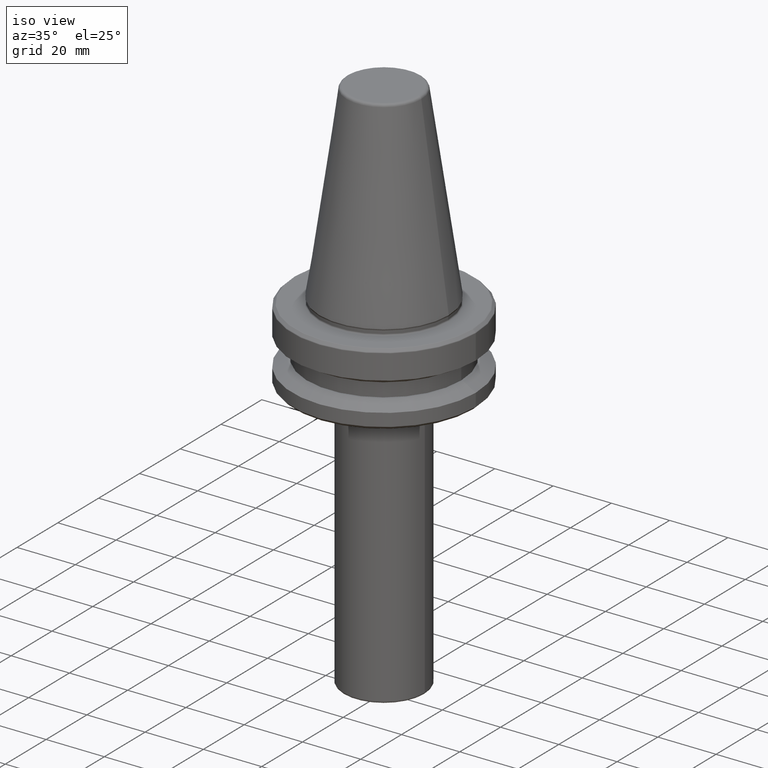
[diagram: clean part render]
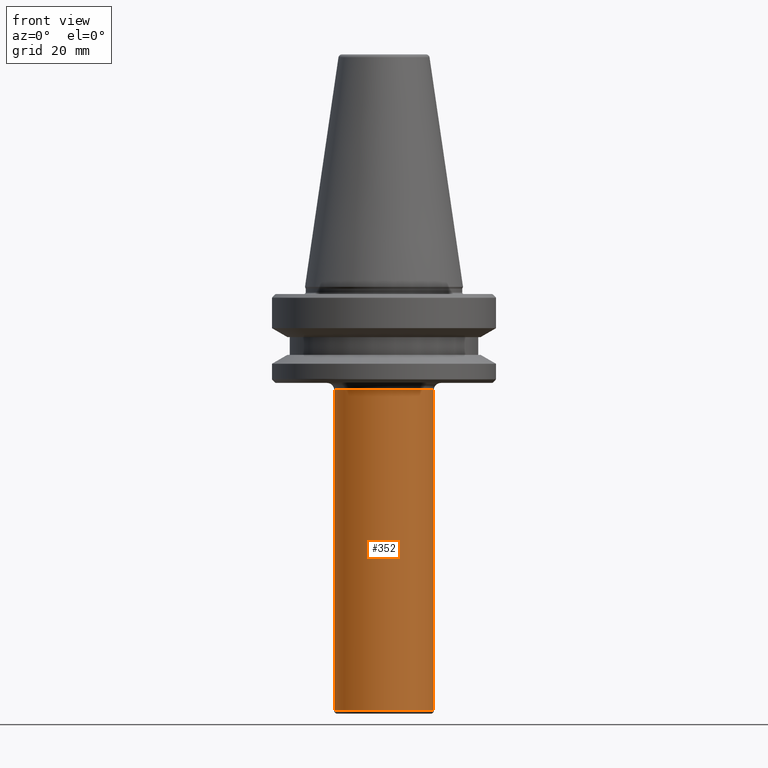
[diagram: tour spotlight — one face highlighted and labeled with its STEP entity id]
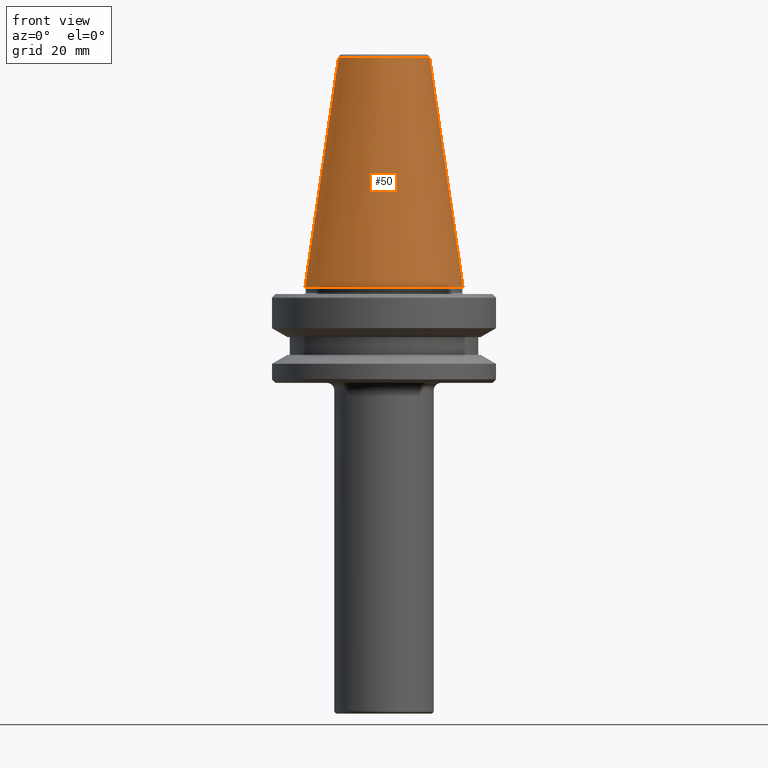
[diagram: tour spotlight — one face highlighted and labeled with its STEP entity id]
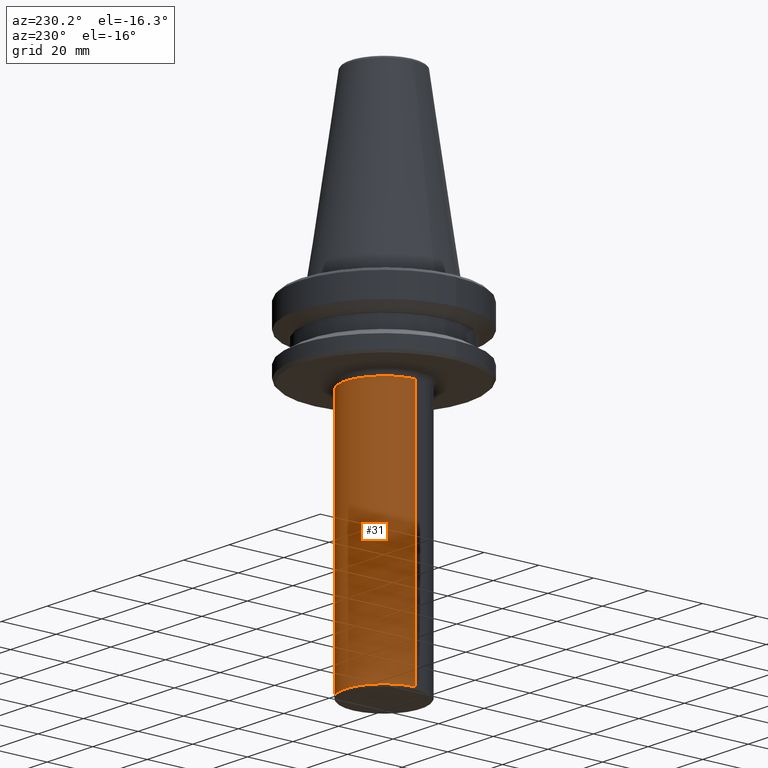
[diagram: tour spotlight — one face highlighted and labeled with its STEP entity id]
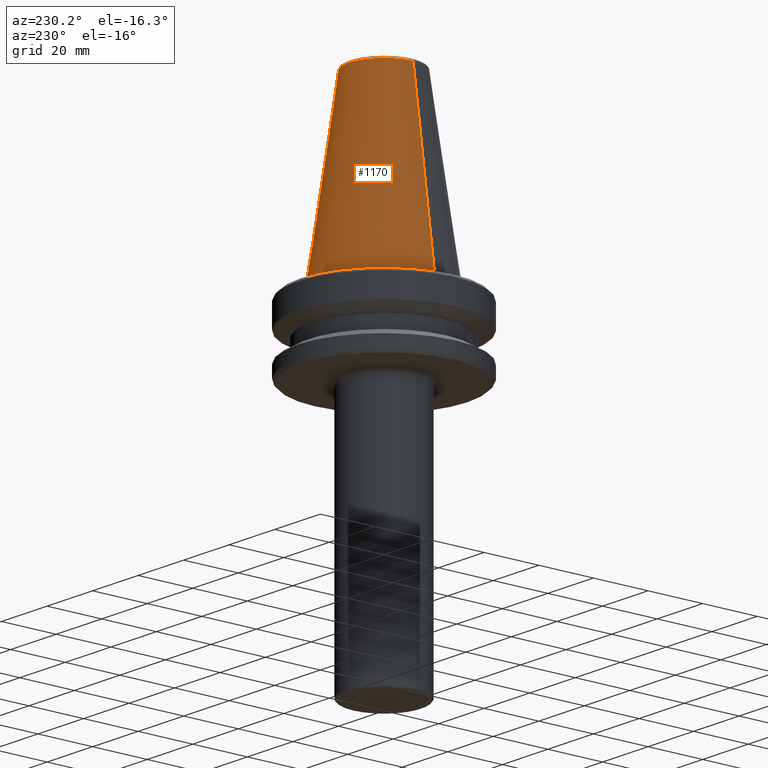
[diagram: tour spotlight — one face highlighted and labeled with its STEP entity id]
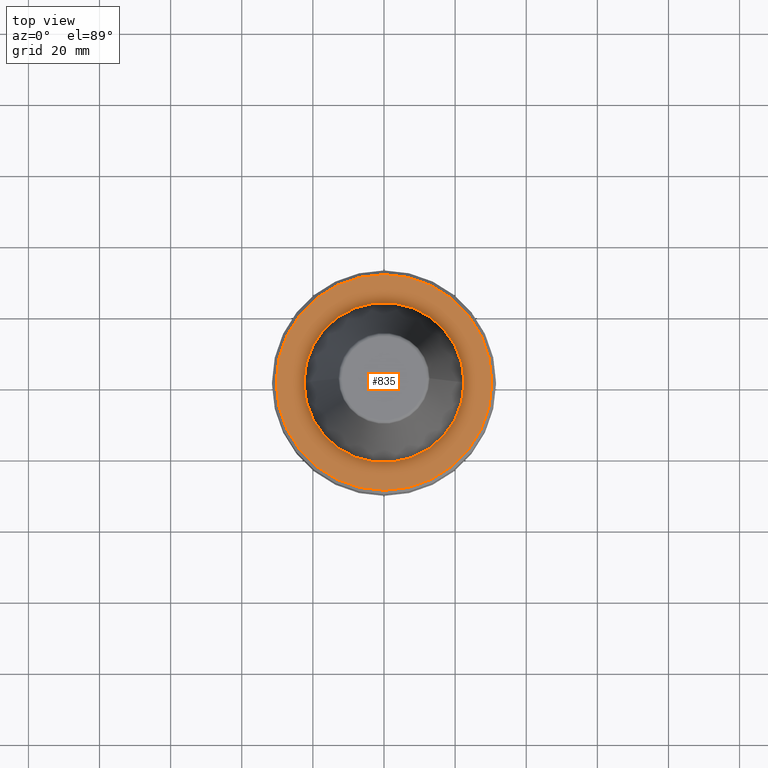
[diagram: tour spotlight — one face highlighted and labeled with its STEP entity id]
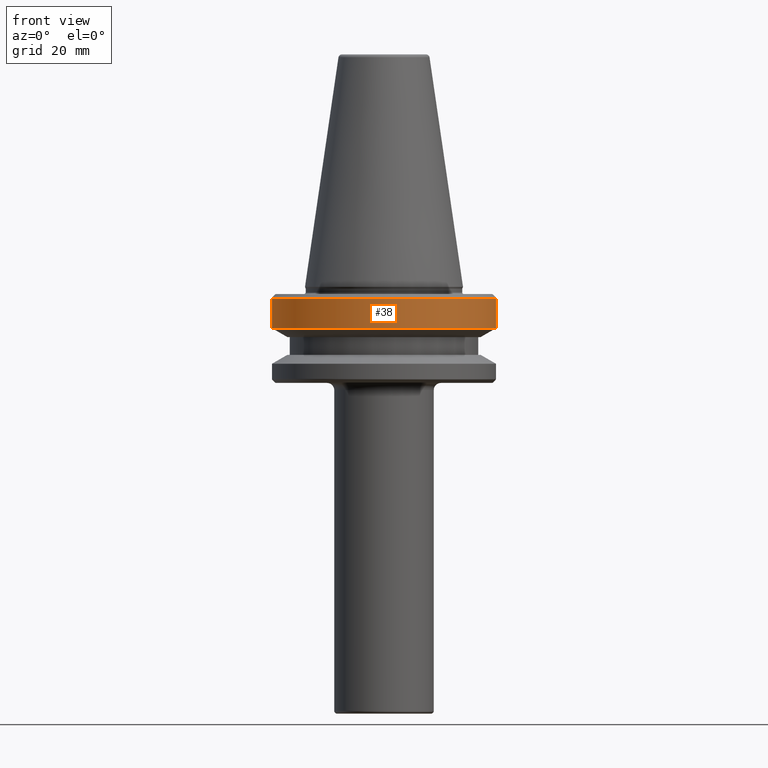
[diagram: tour spotlight — one face highlighted and labeled with its STEP entity id]
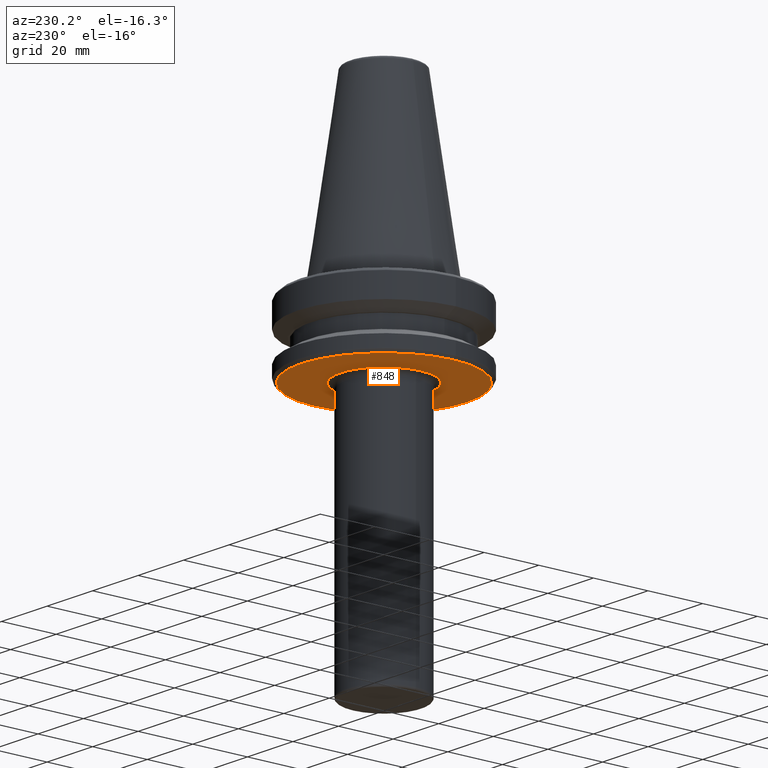
[diagram: tour spotlight — one face highlighted and labeled with its STEP entity id]
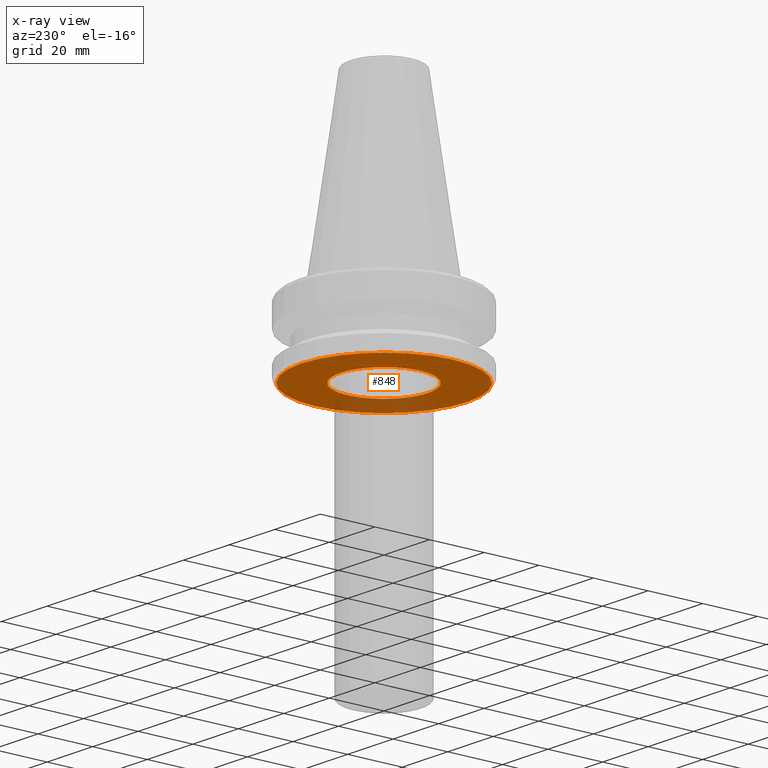
[diagram: x-ray of the same camera — body ghosted, this tour face saturated]
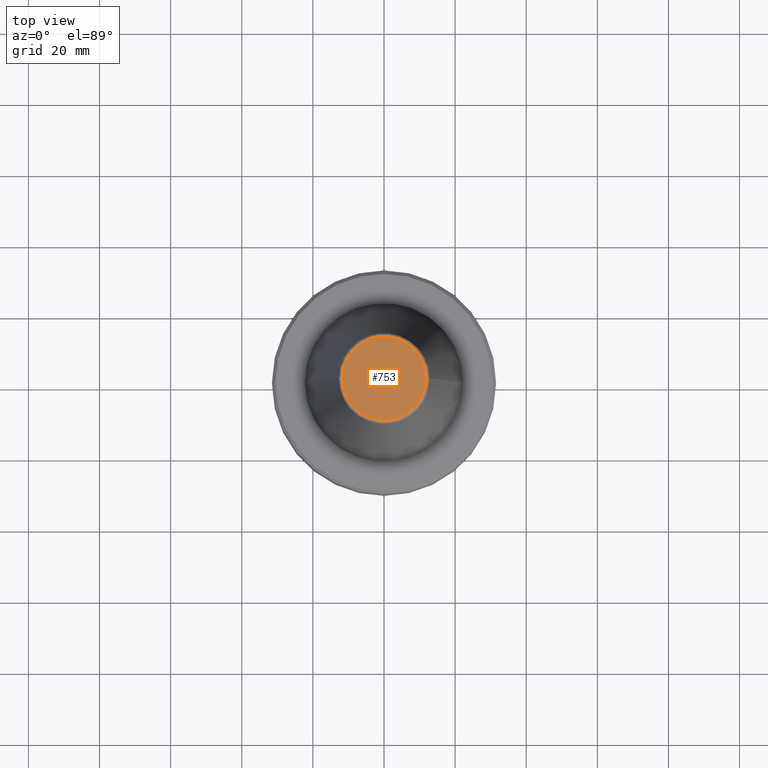
[diagram: tour spotlight — one face highlighted and labeled with its STEP entity id]
A machine part: a face-by-face anatomy tour. The part has 44 B-rep faces; the first image is the clean iso view, then the 8 largest visible faces are spotlighted one at a time (largest first), each with its STEP entity span.

Face 1 — front view, entity #352. In plain terms, the highlighted cylindrical surface (partial cylindrical patch) has radius 14 mm, axis along (-0, -0, 1).
Definition (entity closure, byte-faithful):
#26 = DIRECTION ( 'NONE',  ( -0.0000000000000000000, -0.0000000000000000000, 1.000000000000000000 ) ) ;
#46 = AXIS2_PLACEMENT_3D ( 'NONE', #956, #355, #1068 ) ;
#88 = VERTEX_POINT ( 'NONE', #210 ) ;
#184 = VERTEX_POINT ( 'NONE', #931 ) ;
#197 = EDGE_CURVE ( 'NONE', #438, #184, #895, .T. ) ;
#210 = CARTESIAN_POINT ( 'NONE',  ( 14.00000000000000400, 0.0000000000000000000, -119.2000000000000000 ) ) ;
#249 = EDGE_CURVE ( 'NONE', #844, #88, #867, .T. ) ;
#281 = DIRECTION ( 'NONE',  ( 1.000000000000000000, 0.0000000000000000000, 0.0000000000000000000 ) ) ;
#288 = DIRECTION ( 'NONE',  ( 1.000000000000000000, 0.0000000000000000000, 0.0000000000000000000 ) ) ;
#335 = ORIENTED_EDGE ( 'NONE', *, *, #485, .F. ) ;
#352 = ADVANCED_FACE ( 'NONE', ( #585 ), #583, .T. ) ;
#355 = DIRECTION ( 'NONE',  ( -0.0000000000000000000, -0.0000000000000000000, 1.000000000000000000 ) ) ;
#438 = VERTEX_POINT ( 'NONE', #513 ) ;
#485 = EDGE_CURVE ( 'NONE', #844, #184, #741, .T. ) ;
#513 = CARTESIAN_POINT ( 'NONE',  ( 14.00000000000000200, 0.0000000000000000000, -29.00000000000000400 ) ) ;
#528 = CARTESIAN_POINT ( 'NONE',  ( 14.00000000000000200, 0.0000000000000000000, 0.0000000000000000000 ) ) ;
#560 = ORIENTED_EDGE ( 'NONE', *, *, #249, .T. ) ;
#562 = CARTESIAN_POINT ( 'NONE',  ( 0.0000000000000000000, 0.0000000000000000000, -29.00000000000000400 ) ) ;
#583 = CYLINDRICAL_SURFACE ( 'NONE', #1128, 14.00000000000000200 ) ;
#585 = FACE_OUTER_BOUND ( 'NONE', #842, .T. ) ;
#662 = CARTESIAN_POINT ( 'NONE',  ( 0.0000000000000000000, 0.0000000000000000000, 0.0000000000000000000 ) ) ;
#663 = VECTOR ( 'NONE', #26, 1000.000000000000000 ) ;
#673 = EDGE_CURVE ( 'NONE', #88, #438, #683, .T. ) ;
#683 = LINE ( 'NONE', #528, #663 ) ;
#726 = VECTOR ( 'NONE', #1146, 1000.000000000000000 ) ;
#741 = LINE ( 'NONE', #1031, #726 ) ;
#751 = CARTESIAN_POINT ( 'NONE',  ( -14.00000000000000400, 1.714505518806294800E-015, -119.2000000000000000 ) ) ;
#754 = ORIENTED_EDGE ( 'NONE', *, *, #197, .T. ) ;
#842 = EDGE_LOOP ( 'NONE', ( #335, #560, #1039, #754 ) ) ;
#844 = VERTEX_POINT ( 'NONE', #751 ) ;
#849 = AXIS2_PLACEMENT_3D ( 'NONE', #562, #882, #288 ) ;
#866 = DIRECTION ( 'NONE',  ( -0.0000000000000000000, -0.0000000000000000000, 1.000000000000000000 ) ) ;
#867 = CIRCLE ( 'NONE', #46, 14.00000000000000200 ) ;
#882 = DIRECTION ( 'NONE',  ( -0.0000000000000000000, -0.0000000000000000000, -1.000000000000000000 ) ) ;
#895 = CIRCLE ( 'NONE', #849, 14.00000000000000200 ) ;
#931 = CARTESIAN_POINT ( 'NONE',  ( -14.00000000000000200, 1.714505518806294800E-015, -29.00000000000000400 ) ) ;
#956 = CARTESIAN_POINT ( 'NONE',  ( 0.0000000000000000000, 0.0000000000000000000, -119.2000000000000000 ) ) ;
#1031 = CARTESIAN_POINT ( 'NONE',  ( -14.00000000000000200, 1.714505518806294800E-015, 0.0000000000000000000 ) ) ;
#1039 = ORIENTED_EDGE ( 'NONE', *, *, #673, .T. ) ;
#1068 = DIRECTION ( 'NONE',  ( 1.000000000000000000, 0.0000000000000000000, 0.0000000000000000000 ) ) ;
#1128 = AXIS2_PLACEMENT_3D ( 'NONE', #662, #866, #281 ) ;
#1146 = DIRECTION ( 'NONE',  ( -0.0000000000000000000, -0.0000000000000000000, 1.000000000000000000 ) ) ;

Face 2 — front view, entity #50. In plain terms, the highlighted conical surface has half-angle 8.297 deg.
Definition (entity closure, byte-faithful):
#23 = DIRECTION ( 'NONE',  ( -0.0000000000000000000, -0.0000000000000000000, -1.000000000000000000 ) ) ;
#50 = ADVANCED_FACE ( 'NONE', ( #1011 ), #1150, .T. ) ;
#54 = EDGE_CURVE ( 'NONE', #921, #970, #958, .T. ) ;
#71 = ORIENTED_EDGE ( 'NONE', *, *, #1114, .F. ) ;
#132 = DIRECTION ( 'NONE',  ( -1.000000000000000000, 0.0000000000000000000, 0.0000000000000000000 ) ) ;
#153 = DIRECTION ( 'NONE',  ( 0.1443082272673072200, 1.767266086135366100E-017, -0.9895327864921744700 ) ) ;
#225 = CARTESIAN_POINT ( 'NONE',  ( 22.22500000000000100, 2.721777511104992800E-015, 0.0000000000000000000 ) ) ;
#291 = CARTESIAN_POINT ( 'NONE',  ( 0.0000000000000000000, 0.0000000000000000000, 64.54430822726730800 ) ) ;
#330 = LINE ( 'NONE', #225, #498 ) ;
#391 = DIRECTION ( 'NONE',  ( -1.000000000000000000, 0.0000000000000000000, 0.0000000000000000000 ) ) ;
#420 = VERTEX_POINT ( 'NONE', #874 ) ;
#453 = CARTESIAN_POINT ( 'NONE',  ( -22.22500000000000100, 0.0000000000000000000, 0.0000000000000000000 ) ) ;
#498 = VECTOR ( 'NONE', #153, 1000.000000000000100 ) ;
#509 = CIRCLE ( 'NONE', #1172, 12.81219950706223700 ) ;
#526 = CARTESIAN_POINT ( 'NONE',  ( 0.0000000000000000000, 0.0000000000000000000, 0.0000000000000000000 ) ) ;
#623 = DIRECTION ( 'NONE',  ( -1.000000000000000000, 0.0000000000000000000, 0.0000000000000000000 ) ) ;
#638 = EDGE_CURVE ( 'NONE', #1140, #970, #677, .T. ) ;
#641 = ORIENTED_EDGE ( 'NONE', *, *, #638, .F. ) ;
#655 = CARTESIAN_POINT ( 'NONE',  ( -12.81219950706223500, 0.0000000000000000000, 64.54430822726730800 ) ) ;
#677 = CIRCLE ( 'NONE', #1095, 22.22500000000000100 ) ;
#780 = CARTESIAN_POINT ( 'NONE',  ( 22.22500000000000100, 0.0000000000000000000, 0.0000000000000000000 ) ) ;
#853 = CARTESIAN_POINT ( 'NONE',  ( 0.0000000000000000000, 0.0000000000000000000, 0.0000000000000000000 ) ) ;
#874 = CARTESIAN_POINT ( 'NONE',  ( 12.81219950706223500, 1.569041911636106400E-015, 64.54430822726730800 ) ) ;
#921 = VERTEX_POINT ( 'NONE', #655 ) ;
#946 = EDGE_LOOP ( 'NONE', ( #71, #1122, #985, #641 ) ) ;
#952 = AXIS2_PLACEMENT_3D ( 'NONE', #853, #964, #132 ) ;
#958 = LINE ( 'NONE', #453, #986 ) ;
#964 = DIRECTION ( 'NONE',  ( -0.0000000000000000000, -0.0000000000000000000, -1.000000000000000000 ) ) ;
#970 = VERTEX_POINT ( 'NONE', #1124 ) ;
#985 = ORIENTED_EDGE ( 'NONE', *, *, #54, .T. ) ;
#986 = VECTOR ( 'NONE', #1079, 1000.000000000000100 ) ;
#994 = DIRECTION ( 'NONE',  ( -0.0000000000000000000, -0.0000000000000000000, -1.000000000000000000 ) ) ;
#1011 = FACE_OUTER_BOUND ( 'NONE', #946, .T. ) ;
#1079 = DIRECTION ( 'NONE',  ( -0.1443082272673072200, 0.0000000000000000000, -0.9895327864921744700 ) ) ;
#1095 = AXIS2_PLACEMENT_3D ( 'NONE', #526, #23, #623 ) ;
#1114 = EDGE_CURVE ( 'NONE', #420, #1140, #330, .T. ) ;
#1122 = ORIENTED_EDGE ( 'NONE', *, *, #1137, .T. ) ;
#1124 = CARTESIAN_POINT ( 'NONE',  ( -22.22500000000000100, 2.721777511104992800E-015, 0.0000000000000000000 ) ) ;
#1137 = EDGE_CURVE ( 'NONE', #420, #921, #509, .T. ) ;
#1140 = VERTEX_POINT ( 'NONE', #780 ) ;
#1150 = CONICAL_SURFACE ( 'NONE', #952, 22.22500000000000100, 0.1448138465474192700 ) ;
#1172 = AXIS2_PLACEMENT_3D ( 'NONE', #291, #994, #391 ) ;

Face 3 — auxiliary view, entity #31. In plain terms, the highlighted cylindrical surface (partial cylindrical patch) has radius 14 mm, axis along (-0, -0, 1).
Definition (entity closure, byte-faithful):
#13 = CARTESIAN_POINT ( 'NONE',  ( 0.0000000000000000000, 0.0000000000000000000, -119.2000000000000000 ) ) ;
#26 = DIRECTION ( 'NONE',  ( -0.0000000000000000000, -0.0000000000000000000, 1.000000000000000000 ) ) ;
#31 = ADVANCED_FACE ( 'NONE', ( #1026 ), #1014, .T. ) ;
#88 = VERTEX_POINT ( 'NONE', #210 ) ;
#101 = DIRECTION ( 'NONE',  ( 1.000000000000000000, 0.0000000000000000000, 0.0000000000000000000 ) ) ;
#119 = EDGE_LOOP ( 'NONE', ( #1130, #828, #738, #999 ) ) ;
#140 = AXIS2_PLACEMENT_3D ( 'NONE', #13, #611, #101 ) ;
#184 = VERTEX_POINT ( 'NONE', #931 ) ;
#210 = CARTESIAN_POINT ( 'NONE',  ( 14.00000000000000400, 0.0000000000000000000, -119.2000000000000000 ) ) ;
#233 = DIRECTION ( 'NONE',  ( 1.000000000000000000, 0.0000000000000000000, 0.0000000000000000000 ) ) ;
#399 = DIRECTION ( 'NONE',  ( -0.0000000000000000000, -0.0000000000000000000, 1.000000000000000000 ) ) ;
#426 = EDGE_CURVE ( 'NONE', #88, #844, #770, .T. ) ;
#438 = VERTEX_POINT ( 'NONE', #513 ) ;
#461 = CIRCLE ( 'NONE', #524, 14.00000000000000200 ) ;
#485 = EDGE_CURVE ( 'NONE', #844, #184, #741, .T. ) ;
#502 = CARTESIAN_POINT ( 'NONE',  ( 0.0000000000000000000, 0.0000000000000000000, -29.00000000000000400 ) ) ;
#513 = CARTESIAN_POINT ( 'NONE',  ( 14.00000000000000200, 0.0000000000000000000, -29.00000000000000400 ) ) ;
#524 = AXIS2_PLACEMENT_3D ( 'NONE', #502, #1210, #600 ) ;
#528 = CARTESIAN_POINT ( 'NONE',  ( 14.00000000000000200, 0.0000000000000000000, 0.0000000000000000000 ) ) ;
#600 = DIRECTION ( 'NONE',  ( 1.000000000000000000, 0.0000000000000000000, 0.0000000000000000000 ) ) ;
#611 = DIRECTION ( 'NONE',  ( -0.0000000000000000000, -0.0000000000000000000, 1.000000000000000000 ) ) ;
#663 = VECTOR ( 'NONE', #26, 1000.000000000000000 ) ;
#673 = EDGE_CURVE ( 'NONE', #88, #438, #683, .T. ) ;
#683 = LINE ( 'NONE', #528, #663 ) ;
#726 = VECTOR ( 'NONE', #1146, 1000.000000000000000 ) ;
#738 = ORIENTED_EDGE ( 'NONE', *, *, #1194, .T. ) ;
#741 = LINE ( 'NONE', #1031, #726 ) ;
#751 = CARTESIAN_POINT ( 'NONE',  ( -14.00000000000000400, 1.714505518806294800E-015, -119.2000000000000000 ) ) ;
#770 = CIRCLE ( 'NONE', #140, 14.00000000000000200 ) ;
#828 = ORIENTED_EDGE ( 'NONE', *, *, #485, .T. ) ;
#844 = VERTEX_POINT ( 'NONE', #751 ) ;
#931 = CARTESIAN_POINT ( 'NONE',  ( -14.00000000000000200, 1.714505518806294800E-015, -29.00000000000000400 ) ) ;
#999 = ORIENTED_EDGE ( 'NONE', *, *, #673, .F. ) ;
#1014 = CYLINDRICAL_SURFACE ( 'NONE', #1105, 14.00000000000000200 ) ;
#1026 = FACE_OUTER_BOUND ( 'NONE', #119, .T. ) ;
#1031 = CARTESIAN_POINT ( 'NONE',  ( -14.00000000000000200, 1.714505518806294800E-015, 0.0000000000000000000 ) ) ;
#1105 = AXIS2_PLACEMENT_3D ( 'NONE', #1199, #399, #233 ) ;
#1130 = ORIENTED_EDGE ( 'NONE', *, *, #426, .T. ) ;
#1146 = DIRECTION ( 'NONE',  ( -0.0000000000000000000, -0.0000000000000000000, 1.000000000000000000 ) ) ;
#1194 = EDGE_CURVE ( 'NONE', #184, #438, #461, .T. ) ;
#1199 = CARTESIAN_POINT ( 'NONE',  ( 0.0000000000000000000, 0.0000000000000000000, 0.0000000000000000000 ) ) ;
#1210 = DIRECTION ( 'NONE',  ( -0.0000000000000000000, -0.0000000000000000000, -1.000000000000000000 ) ) ;

Face 4 — auxiliary view, entity #1170. In plain terms, the highlighted conical surface has half-angle 8.297 deg.
Definition (entity closure, byte-faithful):
#54 = EDGE_CURVE ( 'NONE', #921, #970, #958, .T. ) ;
#82 = CARTESIAN_POINT ( 'NONE',  ( 0.0000000000000000000, 0.0000000000000000000, 0.0000000000000000000 ) ) ;
#153 = DIRECTION ( 'NONE',  ( 0.1443082272673072200, 1.767266086135366100E-017, -0.9895327864921744700 ) ) ;
#187 = AXIS2_PLACEMENT_3D ( 'NONE', #299, #1003, #400 ) ;
#199 = ORIENTED_EDGE ( 'NONE', *, *, #748, .F. ) ;
#225 = CARTESIAN_POINT ( 'NONE',  ( 22.22500000000000100, 2.721777511104992800E-015, 0.0000000000000000000 ) ) ;
#299 = CARTESIAN_POINT ( 'NONE',  ( 0.0000000000000000000, 0.0000000000000000000, 64.54430822726730800 ) ) ;
#300 = DIRECTION ( 'NONE',  ( -1.000000000000000000, 0.0000000000000000000, 0.0000000000000000000 ) ) ;
#323 = CARTESIAN_POINT ( 'NONE',  ( 0.0000000000000000000, 0.0000000000000000000, 0.0000000000000000000 ) ) ;
#330 = LINE ( 'NONE', #225, #498 ) ;
#400 = DIRECTION ( 'NONE',  ( -1.000000000000000000, 0.0000000000000000000, 0.0000000000000000000 ) ) ;
#401 = AXIS2_PLACEMENT_3D ( 'NONE', #82, #592, #300 ) ;
#420 = VERTEX_POINT ( 'NONE', #874 ) ;
#423 = DIRECTION ( 'NONE',  ( -1.000000000000000000, 0.0000000000000000000, 0.0000000000000000000 ) ) ;
#433 = EDGE_CURVE ( 'NONE', #921, #420, #764, .T. ) ;
#441 = AXIS2_PLACEMENT_3D ( 'NONE', #323, #1028, #423 ) ;
#453 = CARTESIAN_POINT ( 'NONE',  ( -22.22500000000000100, 0.0000000000000000000, 0.0000000000000000000 ) ) ;
#462 = CONICAL_SURFACE ( 'NONE', #401, 22.22500000000000100, 0.1448138465474192700 ) ;
#480 = FACE_OUTER_BOUND ( 'NONE', #968, .T. ) ;
#486 = ORIENTED_EDGE ( 'NONE', *, *, #1114, .T. ) ;
#498 = VECTOR ( 'NONE', #153, 1000.000000000000100 ) ;
#592 = DIRECTION ( 'NONE',  ( -0.0000000000000000000, -0.0000000000000000000, -1.000000000000000000 ) ) ;
#626 = CIRCLE ( 'NONE', #441, 22.22500000000000100 ) ;
#655 = CARTESIAN_POINT ( 'NONE',  ( -12.81219950706223500, 0.0000000000000000000, 64.54430822726730800 ) ) ;
#748 = EDGE_CURVE ( 'NONE', #970, #1140, #626, .T. ) ;
#764 = CIRCLE ( 'NONE', #187, 12.81219950706223700 ) ;
#780 = CARTESIAN_POINT ( 'NONE',  ( 22.22500000000000100, 0.0000000000000000000, 0.0000000000000000000 ) ) ;
#874 = CARTESIAN_POINT ( 'NONE',  ( 12.81219950706223500, 1.569041911636106400E-015, 64.54430822726730800 ) ) ;
#921 = VERTEX_POINT ( 'NONE', #655 ) ;
#958 = LINE ( 'NONE', #453, #986 ) ;
#968 = EDGE_LOOP ( 'NONE', ( #1132, #486, #199, #1085 ) ) ;
#970 = VERTEX_POINT ( 'NONE', #1124 ) ;
#986 = VECTOR ( 'NONE', #1079, 1000.000000000000100 ) ;
#1003 = DIRECTION ( 'NONE',  ( -0.0000000000000000000, -0.0000000000000000000, -1.000000000000000000 ) ) ;
#1028 = DIRECTION ( 'NONE',  ( -0.0000000000000000000, -0.0000000000000000000, -1.000000000000000000 ) ) ;
#1079 = DIRECTION ( 'NONE',  ( -0.1443082272673072200, 0.0000000000000000000, -0.9895327864921744700 ) ) ;
#1085 = ORIENTED_EDGE ( 'NONE', *, *, #54, .F. ) ;
#1114 = EDGE_CURVE ( 'NONE', #420, #1140, #330, .T. ) ;
#1124 = CARTESIAN_POINT ( 'NONE',  ( -22.22500000000000100, 2.721777511104992800E-015, 0.0000000000000000000 ) ) ;
#1132 = ORIENTED_EDGE ( 'NONE', *, *, #433, .T. ) ;
#1140 = VERTEX_POINT ( 'NONE', #780 ) ;
#1170 = ADVANCED_FACE ( 'NONE', ( #480 ), #462, .T. ) ;

Face 5 — top view, entity #835. In plain terms, the highlighted planar face has unit normal (-0, 0, -1).
Definition (entity closure, byte-faithful):
#18 = VERTEX_POINT ( 'NONE', #788 ) ;
#33 = VERTEX_POINT ( 'NONE', #796 ) ;
#42 = DIRECTION ( 'NONE',  ( -1.000000000000000000, 0.0000000000000000000, 0.0000000000000000000 ) ) ;
#56 = DIRECTION ( 'NONE',  ( -1.000000000000000000, 0.0000000000000000000, 0.0000000000000000000 ) ) ;
#114 = DIRECTION ( 'NONE',  ( -0.0000000000000000000, -0.0000000000000000000, -1.000000000000000000 ) ) ;
#120 = AXIS2_PLACEMENT_3D ( 'NONE', #627, #114, #734 ) ;
#128 = VERTEX_POINT ( 'NONE', #212 ) ;
#200 = AXIS2_PLACEMENT_3D ( 'NONE', #891, #294, #997 ) ;
#212 = CARTESIAN_POINT ( 'NONE',  ( 22.50000000000000000, 2.755455298081545200E-015, -2.000000000000000000 ) ) ;
#271 = ORIENTED_EDGE ( 'NONE', *, *, #1205, .T. ) ;
#287 = EDGE_CURVE ( 'NONE', #33, #128, #812, .T. ) ;
#294 = DIRECTION ( 'NONE',  ( -0.0000000000000000000, -0.0000000000000000000, -1.000000000000000000 ) ) ;
#331 = AXIS2_PLACEMENT_3D ( 'NONE', #978, #380, #1098 ) ;
#342 = CIRCLE ( 'NONE', #200, 30.33431457505075800 ) ;
#356 = CARTESIAN_POINT ( 'NONE',  ( 0.0000000000000000000, 0.0000000000000000000, -2.000000000000000000 ) ) ;
#380 = DIRECTION ( 'NONE',  ( -0.0000000000000000000, -0.0000000000000000000, -1.000000000000000000 ) ) ;
#464 = CIRCLE ( 'NONE', #331, 22.50000000000000400 ) ;
#546 = DIRECTION ( 'NONE',  ( -0.0000000000000000000, 0.0000000000000000000, -1.000000000000000000 ) ) ;
#566 = DIRECTION ( 'NONE',  ( -0.0000000000000000000, -0.0000000000000000000, -1.000000000000000000 ) ) ;
#604 = FACE_BOUND ( 'NONE', #948, .T. ) ;
#613 = FACE_OUTER_BOUND ( 'NONE', #836, .T. ) ;
#621 = AXIS2_PLACEMENT_3D ( 'NONE', #801, #566, #56 ) ;
#627 = CARTESIAN_POINT ( 'NONE',  ( 0.0000000000000000000, 0.0000000000000000000, -2.000000000000000000 ) ) ;
#660 = CIRCLE ( 'NONE', #120, 30.33431457505075800 ) ;
#671 = EDGE_CURVE ( 'NONE', #18, #1041, #660, .T. ) ;
#734 = DIRECTION ( 'NONE',  ( -1.000000000000000000, 0.0000000000000000000, 0.0000000000000000000 ) ) ;
#788 = CARTESIAN_POINT ( 'NONE',  ( 30.33431457505075800, 3.732201245991191100E-015, -2.000000000000000000 ) ) ;
#796 = CARTESIAN_POINT ( 'NONE',  ( -22.50000000000000000, 0.0000000000000000000, -2.000000000000000000 ) ) ;
#801 = CARTESIAN_POINT ( 'NONE',  ( 0.0000000000000000000, 0.0000000000000000000, -2.000000000000000000 ) ) ;
#802 = CARTESIAN_POINT ( 'NONE',  ( -30.33431457505075800, 0.0000000000000000000, -2.000000000000000000 ) ) ;
#812 = CIRCLE ( 'NONE', #621, 22.50000000000000400 ) ;
#835 = ADVANCED_FACE ( 'NONE', ( #613, #604 ), #843, .F. ) ;
#836 = EDGE_LOOP ( 'NONE', ( #1156, #839 ) ) ;
#839 = ORIENTED_EDGE ( 'NONE', *, *, #671, .F. ) ;
#843 = PLANE ( 'NONE',  #988 ) ;
#891 = CARTESIAN_POINT ( 'NONE',  ( 0.0000000000000000000, 0.0000000000000000000, -2.000000000000000000 ) ) ;
#910 = EDGE_CURVE ( 'NONE', #1041, #18, #342, .T. ) ;
#948 = EDGE_LOOP ( 'NONE', ( #1037, #271 ) ) ;
#978 = CARTESIAN_POINT ( 'NONE',  ( 0.0000000000000000000, 0.0000000000000000000, -2.000000000000000000 ) ) ;
#988 = AXIS2_PLACEMENT_3D ( 'NONE', #356, #546, #42 ) ;
#997 = DIRECTION ( 'NONE',  ( -1.000000000000000000, 0.0000000000000000000, 0.0000000000000000000 ) ) ;
#1037 = ORIENTED_EDGE ( 'NONE', *, *, #287, .T. ) ;
#1041 = VERTEX_POINT ( 'NONE', #802 ) ;
#1098 = DIRECTION ( 'NONE',  ( -1.000000000000000000, 0.0000000000000000000, 0.0000000000000000000 ) ) ;
#1156 = ORIENTED_EDGE ( 'NONE', *, *, #910, .F. ) ;
#1205 = EDGE_CURVE ( 'NONE', #128, #33, #464, .T. ) ;

Face 6 — front view, entity #38. In plain terms, the highlighted cylindrical surface (partial cylindrical patch) has radius 31.5 mm, axis along (-0, -0, -1).
Definition (entity closure, byte-faithful):
#25 = CARTESIAN_POINT ( 'NONE',  ( -31.50000000000000000, 3.857637417314162700E-015, -11.60014666881784400 ) ) ;
#27 = CARTESIAN_POINT ( 'NONE',  ( 0.0000000000000000000, 0.0000000000000000000, -11.60014666881784400 ) ) ;
#38 = ADVANCED_FACE ( 'NONE', ( #1027 ), #1007, .T. ) ;
#51 = ORIENTED_EDGE ( 'NONE', *, *, #93, .T. ) ;
#68 = AXIS2_PLACEMENT_3D ( 'NONE', #27, #630, #116 ) ;
#79 = DIRECTION ( 'NONE',  ( -0.0000000000000000000, -0.0000000000000000000, -1.000000000000000000 ) ) ;
#89 = EDGE_CURVE ( 'NONE', #1057, #594, #941, .T. ) ;
#93 = EDGE_CURVE ( 'NONE', #1115, #1149, #957, .T. ) ;
#116 = DIRECTION ( 'NONE',  ( -1.000000000000000000, 0.0000000000000000000, 0.0000000000000000000 ) ) ;
#136 = CARTESIAN_POINT ( 'NONE',  ( 0.0000000000000000000, 0.0000000000000000000, -3.165685424949240100 ) ) ;
#169 = DIRECTION ( 'NONE',  ( -1.000000000000000000, 0.0000000000000000000, 0.0000000000000000000 ) ) ;
#183 = AXIS2_PLACEMENT_3D ( 'NONE', #136, #757, #208 ) ;
#208 = DIRECTION ( 'NONE',  ( -1.000000000000000000, 0.0000000000000000000, 0.0000000000000000000 ) ) ;
#237 = CARTESIAN_POINT ( 'NONE',  ( 0.0000000000000000000, 0.0000000000000000000, 0.0000000000000000000 ) ) ;
#275 = EDGE_LOOP ( 'NONE', ( #1051, #51, #1136, #370 ) ) ;
#370 = ORIENTED_EDGE ( 'NONE', *, *, #89, .F. ) ;
#424 = CARTESIAN_POINT ( 'NONE',  ( 31.50000000000000000, 3.857637417314162700E-015, 0.0000000000000000000 ) ) ;
#472 = EDGE_CURVE ( 'NONE', #1149, #594, #744, .T. ) ;
#538 = EDGE_CURVE ( 'NONE', #1115, #1057, #725, .T. ) ;
#594 = VERTEX_POINT ( 'NONE', #25 ) ;
#608 = DIRECTION ( 'NONE',  ( -0.0000000000000000000, -0.0000000000000000000, -1.000000000000000000 ) ) ;
#630 = DIRECTION ( 'NONE',  ( -0.0000000000000000000, -0.0000000000000000000, -1.000000000000000000 ) ) ;
#704 = CARTESIAN_POINT ( 'NONE',  ( 31.50000000000000000, 0.0000000000000000000, -11.60014666881784400 ) ) ;
#717 = VECTOR ( 'NONE', #821, 1000.000000000000000 ) ;
#725 = LINE ( 'NONE', #424, #717 ) ;
#730 = VECTOR ( 'NONE', #608, 1000.000000000000000 ) ;
#744 = LINE ( 'NONE', #817, #730 ) ;
#757 = DIRECTION ( 'NONE',  ( -0.0000000000000000000, -0.0000000000000000000, -1.000000000000000000 ) ) ;
#817 = CARTESIAN_POINT ( 'NONE',  ( -31.50000000000000000, 0.0000000000000000000, 0.0000000000000000000 ) ) ;
#821 = DIRECTION ( 'NONE',  ( -0.0000000000000000000, -0.0000000000000000000, -1.000000000000000000 ) ) ;
#885 = CARTESIAN_POINT ( 'NONE',  ( -31.50000000000000000, 0.0000000000000000000, -3.165685424949240100 ) ) ;
#941 = CIRCLE ( 'NONE', #68, 31.50000000000000000 ) ;
#957 = CIRCLE ( 'NONE', #183, 31.50000000000000000 ) ;
#1007 = CYLINDRICAL_SURFACE ( 'NONE', #1165, 31.50000000000000000 ) ;
#1027 = FACE_OUTER_BOUND ( 'NONE', #275, .T. ) ;
#1051 = ORIENTED_EDGE ( 'NONE', *, *, #538, .F. ) ;
#1057 = VERTEX_POINT ( 'NONE', #704 ) ;
#1106 = CARTESIAN_POINT ( 'NONE',  ( 31.50000000000000000, 3.857637417314162700E-015, -3.165685424949240100 ) ) ;
#1115 = VERTEX_POINT ( 'NONE', #1106 ) ;
#1136 = ORIENTED_EDGE ( 'NONE', *, *, #472, .T. ) ;
#1149 = VERTEX_POINT ( 'NONE', #885 ) ;
#1165 = AXIS2_PLACEMENT_3D ( 'NONE', #237, #79, #169 ) ;

Face 7 — auxiliary view, entity #848. An x-ray twin of the same camera follows (body ghosted, this face saturated) — the face is partly hidden behind the body. In plain terms, the highlighted planar face has unit normal (0, 0, 1).
Definition (entity closure, byte-faithful):
#40 = AXIS2_PLACEMENT_3D ( 'NONE', #651, #854, #273 ) ;
#63 = CARTESIAN_POINT ( 'NONE',  ( 0.0000000000000000000, 0.0000000000000000000, -27.00000000000000400 ) ) ;
#94 = EDGE_LOOP ( 'NONE', ( #1045, #226 ) ) ;
#99 = CARTESIAN_POINT ( 'NONE',  ( 0.0000000000000000000, 0.0000000000000000000, -27.00000000000000400 ) ) ;
#106 = CARTESIAN_POINT ( 'NONE',  ( 30.33431457505075800, 3.732201245991191100E-015, -27.00000000000000400 ) ) ;
#113 = DIRECTION ( 'NONE',  ( -0.0000000000000000000, -0.0000000000000000000, -1.000000000000000000 ) ) ;
#141 = VERTEX_POINT ( 'NONE', #106 ) ;
#151 = DIRECTION ( 'NONE',  ( -1.000000000000000000, 0.0000000000000000000, 0.0000000000000000000 ) ) ;
#182 = DIRECTION ( 'NONE',  ( 1.000000000000000000, 0.0000000000000000000, 0.0000000000000000000 ) ) ;
#226 = ORIENTED_EDGE ( 'NONE', *, *, #1209, .T. ) ;
#273 = DIRECTION ( 'NONE',  ( 1.000000000000000000, 0.0000000000000000000, -0.0000000000000000000 ) ) ;
#398 = AXIS2_PLACEMENT_3D ( 'NONE', #63, #668, #151 ) ;
#408 = EDGE_CURVE ( 'NONE', #1008, #1091, #771, .T. ) ;
#439 = CARTESIAN_POINT ( 'NONE',  ( 0.0000000000000000000, 0.0000000000000000000, -27.00000000000000400 ) ) ;
#445 = CIRCLE ( 'NONE', #398, 30.33431457505075800 ) ;
#501 = CARTESIAN_POINT ( 'NONE',  ( -30.33431457505075800, 0.0000000000000000000, -27.00000000000000400 ) ) ;
#537 = DIRECTION ( 'NONE',  ( 1.000000000000000000, 0.0000000000000000000, 0.0000000000000000000 ) ) ;
#540 = EDGE_CURVE ( 'NONE', #1091, #1008, #727, .T. ) ;
#544 = DIRECTION ( 'NONE',  ( -1.000000000000000000, 0.0000000000000000000, 0.0000000000000000000 ) ) ;
#567 = FACE_OUTER_BOUND ( 'NONE', #94, .T. ) ;
#575 = CARTESIAN_POINT ( 'NONE',  ( 16.00000000000000000, 0.0000000000000000000, -27.00000000000000400 ) ) ;
#615 = FACE_BOUND ( 'NONE', #706, .T. ) ;
#646 = CIRCLE ( 'NONE', #710, 30.33431457505075800 ) ;
#651 = CARTESIAN_POINT ( 'NONE',  ( 0.0000000000000000000, 3.088089149698246700E-015, -27.00000000000000400 ) ) ;
#664 = AXIS2_PLACEMENT_3D ( 'NONE', #439, #1162, #537 ) ;
#668 = DIRECTION ( 'NONE',  ( -0.0000000000000000000, -0.0000000000000000000, -1.000000000000000000 ) ) ;
#706 = EDGE_LOOP ( 'NONE', ( #830, #804 ) ) ;
#710 = AXIS2_PLACEMENT_3D ( 'NONE', #1050, #113, #544 ) ;
#714 = DIRECTION ( 'NONE',  ( 0.0000000000000000000, 0.0000000000000000000, 1.000000000000000000 ) ) ;
#727 = CIRCLE ( 'NONE', #664, 16.00000000000000000 ) ;
#771 = CIRCLE ( 'NONE', #1177, 16.00000000000000000 ) ;
#781 = EDGE_CURVE ( 'NONE', #1040, #141, #646, .T. ) ;
#804 = ORIENTED_EDGE ( 'NONE', *, *, #408, .T. ) ;
#830 = ORIENTED_EDGE ( 'NONE', *, *, #540, .T. ) ;
#848 = ADVANCED_FACE ( 'NONE', ( #615, #567 ), #1072, .F. ) ;
#854 = DIRECTION ( 'NONE',  ( 0.0000000000000000000, 0.0000000000000000000, 1.000000000000000000 ) ) ;
#1008 = VERTEX_POINT ( 'NONE', #1012 ) ;
#1012 = CARTESIAN_POINT ( 'NONE',  ( -16.00000000000000000, 1.959434878635765100E-015, -27.00000000000000400 ) ) ;
#1040 = VERTEX_POINT ( 'NONE', #501 ) ;
#1045 = ORIENTED_EDGE ( 'NONE', *, *, #781, .T. ) ;
#1050 = CARTESIAN_POINT ( 'NONE',  ( 0.0000000000000000000, 0.0000000000000000000, -27.00000000000000400 ) ) ;
#1072 = PLANE ( 'NONE',  #40 ) ;
#1091 = VERTEX_POINT ( 'NONE', #575 ) ;
#1162 = DIRECTION ( 'NONE',  ( 0.0000000000000000000, 0.0000000000000000000, 1.000000000000000000 ) ) ;
#1177 = AXIS2_PLACEMENT_3D ( 'NONE', #99, #714, #182 ) ;
#1209 = EDGE_CURVE ( 'NONE', #141, #1040, #445, .T. ) ;

Face 8 — top view, entity #753. In plain terms, the highlighted planar face has unit normal (0, 0, 1).
Definition (entity closure, byte-faithful):
#6 = DIRECTION ( 'NONE',  ( -0.0000000000000000000, -0.0000000000000000000, -1.000000000000000000 ) ) ;
#30 = VERTEX_POINT ( 'NONE', #1123 ) ;
#245 = ORIENTED_EDGE ( 'NONE', *, *, #742, .F. ) ;
#252 = PLANE ( 'NONE',  #640 ) ;
#266 = AXIS2_PLACEMENT_3D ( 'NONE', #508, #6, #606 ) ;
#284 = EDGE_CURVE ( 'NONE', #30, #1022, #825, .T. ) ;
#296 = CARTESIAN_POINT ( 'NONE',  ( 0.0000000000000000000, 0.0000000000000000000, 65.40000000000000600 ) ) ;
#397 = DIRECTION ( 'NONE',  ( -1.000000000000000000, 0.0000000000000000000, 0.0000000000000000000 ) ) ;
#430 = AXIS2_PLACEMENT_3D ( 'NONE', #296, #1000, #397 ) ;
#508 = CARTESIAN_POINT ( 'NONE',  ( 0.0000000000000000000, 0.0000000000000000000, 65.40000000000000600 ) ) ;
#515 = DIRECTION ( 'NONE',  ( 1.000000000000000000, 0.0000000000000000000, -0.0000000000000000000 ) ) ;
#606 = DIRECTION ( 'NONE',  ( -1.000000000000000000, 0.0000000000000000000, 0.0000000000000000000 ) ) ;
#625 = ORIENTED_EDGE ( 'NONE', *, *, #284, .F. ) ;
#640 = AXIS2_PLACEMENT_3D ( 'NONE', #709, #1144, #515 ) ;
#644 = CIRCLE ( 'NONE', #266, 11.82266672057005500 ) ;
#649 = FACE_OUTER_BOUND ( 'NONE', #878, .T. ) ;
#698 = CARTESIAN_POINT ( 'NONE',  ( -11.82266672057005500, 0.0000000000000000000, 65.40000000000000600 ) ) ;
#709 = CARTESIAN_POINT ( 'NONE',  ( 0.0000000000000000000, 0.0000000000000000000, 65.40000000000000600 ) ) ;
#742 = EDGE_CURVE ( 'NONE', #1022, #30, #644, .T. ) ;
#753 = ADVANCED_FACE ( 'NONE', ( #649 ), #252, .T. ) ;
#825 = CIRCLE ( 'NONE', #430, 11.82266672057005500 ) ;
#878 = EDGE_LOOP ( 'NONE', ( #245, #625 ) ) ;
#1000 = DIRECTION ( 'NONE',  ( -0.0000000000000000000, -0.0000000000000000000, -1.000000000000000000 ) ) ;
#1022 = VERTEX_POINT ( 'NONE', #698 ) ;
#1123 = CARTESIAN_POINT ( 'NONE',  ( 11.82266672057005500, 1.508450503654655900E-015, 65.40000000000000600 ) ) ;
#1144 = DIRECTION ( 'NONE',  ( 0.0000000000000000000, 0.0000000000000000000, 1.000000000000000000 ) ) ;